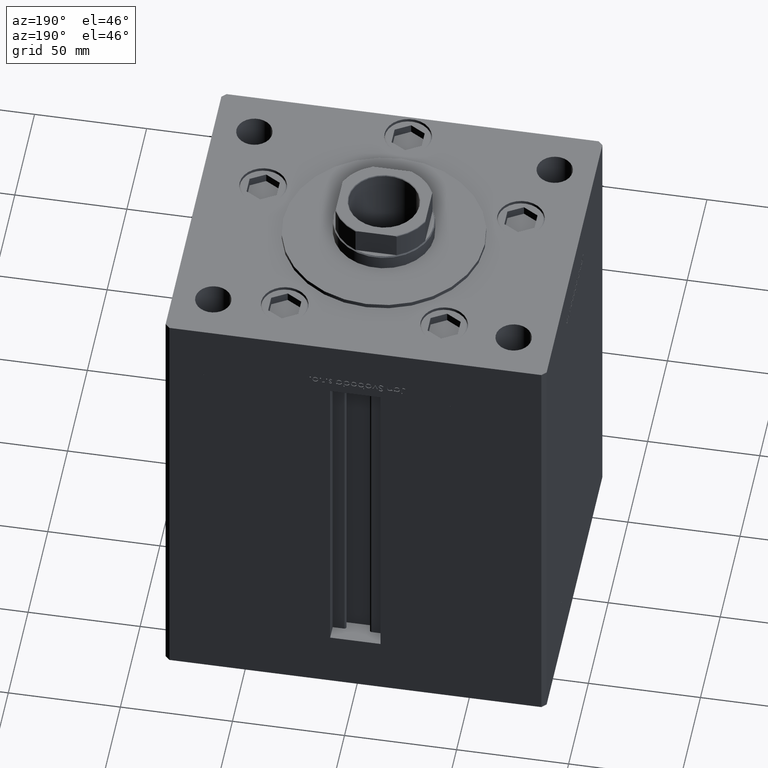
[diagram: clean part render]
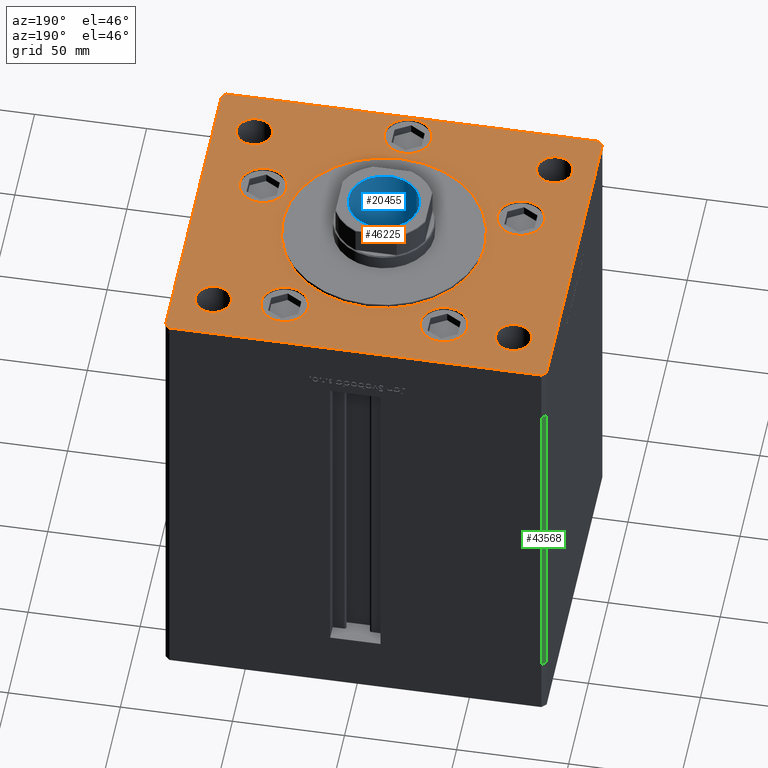
[diagram: same view with three faces highlighted in distinct colors, each labeled with its STEP entity id]
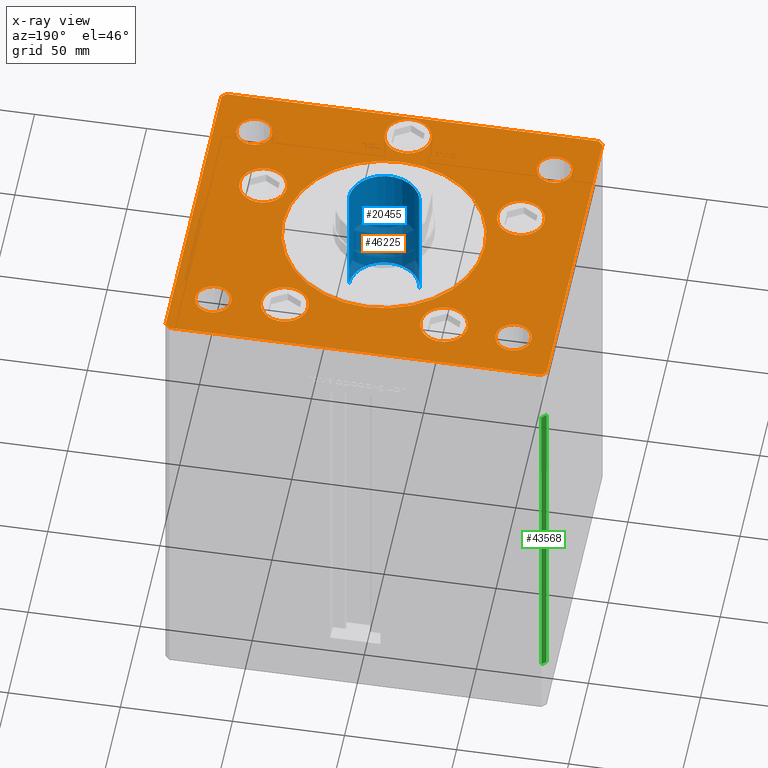
[diagram: x-ray of the same camera — body ghosted, the three highlighted faces saturated]
A machine part, auxiliary view with three faces highlighted in distinct colors.
The next image is the same camera in x-ray (body ghosted, the three faces saturated) — at least one of them is partly hidden behind the body in this view.
Their STEP definitions:

[orange] entity #46225 — the highlighted planar face has unit normal (0, 0, 1).
#43 = AXIS2_PLACEMENT_3D ( 'NONE', #26048, #34456, #42871 ) ;
#105 = DIRECTION ( 'NONE',  ( 0.000000000000000000, 0.000000000000000000, 1.000000000000000000 ) ) ;
#375 = DIRECTION ( 'NONE',  ( 1.000000000000000000, 0.000000000000000000, 0.000000000000000000 ) ) ;
#439 = EDGE_CURVE ( 'NONE', #29386, #24734, #47312, .T. ) ;
#594 = DIRECTION ( 'NONE',  ( 0.000000000000000000, 0.000000000000000000, 1.000000000000000000 ) ) ;
#682 = CIRCLE ( 'NONE', #36009, 8.000000000000007105 ) ;
#873 = LINE ( 'NONE', #40417, #955 ) ;
#877 = ORIENTED_EDGE ( 'NONE', *, *, #439, .T. ) ;
#955 = VECTOR ( 'NONE', #1401, 1000.000000000000000 ) ;
#1150 = CARTESIAN_POINT ( 'NONE',  ( -45.00000000000000711, -6.938893903907228378E-15, 0.000000000000000000 ) ) ;
#1401 = DIRECTION ( 'NONE',  ( 1.000000000000000000, 5.852079196066335998E-16, 0.000000000000000000 ) ) ;
#1518 = CIRCLE ( 'NONE', #4045, 10.50000000000000000 ) ;
#1680 = EDGE_CURVE ( 'NONE', #36586, #28237, #36664, .T. ) ;
#1709 = FACE_BOUND ( 'NONE', #37470, .T. ) ;
#1971 = FACE_BOUND ( 'NONE', #7152, .T. ) ;
#3124 = CARTESIAN_POINT ( 'NONE',  ( -75.00000000000000000, -52.00000000000000711, 0.000000000000000000 ) ) ;
#3299 = EDGE_CURVE ( 'NONE', #42583, #16744, #32587, .T. ) ;
#3316 = CARTESIAN_POINT ( 'NONE',  ( -82.99999999999998579, 72.49999999999998579, 0.000000000000000000 ) ) ;
#3624 = CARTESIAN_POINT ( 'NONE',  ( 67.00000000000000000, -52.00000000000000711, 0.000000000000000000 ) ) ;
#3657 = CARTESIAN_POINT ( 'NONE',  ( 35.56063263990113654, 49.56249999999997868, 0.000000000000000000 ) ) ;
#3679 = DIRECTION ( 'NONE',  ( 1.000000000000000000, 0.000000000000000000, 0.000000000000000000 ) ) ;
#3684 = DIRECTION ( 'NONE',  ( 0.000000000000000000, 0.000000000000000000, 1.000000000000000000 ) ) ;
#3885 = LINE ( 'NONE', #43920, #39482 ) ;
#3981 = LINE ( 'NONE', #36116, #22205 ) ;
#4045 = AXIS2_PLACEMENT_3D ( 'NONE', #33377, #48656, #37049 ) ;
#4093 = DIRECTION ( 'NONE',  ( 1.000000000000000000, 0.000000000000000000, 0.000000000000000000 ) ) ;
#4109 = CARTESIAN_POINT ( 'NONE',  ( -85.00000000000000000, -70.50000000000004263, 0.000000000000000000 ) ) ;
#4508 = CIRCLE ( 'NONE', #32270, 45.00000000000000711 ) ;
#4690 = CARTESIAN_POINT ( 'NONE',  ( 67.00000000000000000, -52.00000000000000711, 0.000000000000000000 ) ) ;
#4862 = CARTESIAN_POINT ( 'NONE',  ( 0.000000000000000000, -6.938893903907228378E-15, 0.000000000000000000 ) ) ;
#5087 = DIRECTION ( 'NONE',  ( 1.000000000000000000, 0.000000000000000000, 0.000000000000000000 ) ) ;
#5195 = AXIS2_PLACEMENT_3D ( 'NONE', #4690, #45247, #36575 ) ;
#5365 = DIRECTION ( 'NONE',  ( 0.000000000000000000, 0.000000000000000000, 1.000000000000000000 ) ) ;
#5677 = CARTESIAN_POINT ( 'NONE',  ( 25.06063263990113299, 49.56249999999997868, 0.000000000000000000 ) ) ;
#5746 = DIRECTION ( 'NONE',  ( 1.000000000000000000, 0.000000000000000000, 0.000000000000000000 ) ) ;
#5918 = FACE_BOUND ( 'NONE', #19017, .T. ) ;
#5941 = CIRCLE ( 'NONE', #35411, 8.000000000000000000 ) ;
#6249 = ORIENTED_EDGE ( 'NONE', *, *, #47534, .F. ) ;
#6260 = CARTESIAN_POINT ( 'NONE',  ( 35.56063263990113654, 49.56249999999997868, 0.000000000000000000 ) ) ;
#6313 = EDGE_CURVE ( 'NONE', #23902, #33551, #47519, .T. ) ;
#6338 = LINE ( 'NONE', #15555, #35627 ) ;
#6350 = VERTEX_POINT ( 'NONE', #45056 ) ;
#6600 = VERTEX_POINT ( 'NONE', #51098 ) ;
#6750 = CIRCLE ( 'NONE', #16840, 45.00000000000000711 ) ;
#6959 = CARTESIAN_POINT ( 'NONE',  ( -25.06063263990113299, 49.56249999999997868, 0.000000000000000000 ) ) ;
#7152 = EDGE_LOOP ( 'NONE', ( #44163, #42548 ) ) ;
#7230 = EDGE_LOOP ( 'NONE', ( #33865, #44922 ) ) ;
#7516 = EDGE_CURVE ( 'NONE', #6350, #8819, #31906, .T. ) ;
#7538 = CARTESIAN_POINT ( 'NONE',  ( -67.00000000000000000, 52.00000000000001421, 0.000000000000000000 ) ) ;
#7635 = EDGE_CURVE ( 'NONE', #52022, #15046, #43198, .T. ) ;
#7797 = DIRECTION ( 'NONE',  ( -0.7071067811865549002, -0.7071067811865401342, 0.000000000000000000 ) ) ;
#8238 = CARTESIAN_POINT ( 'NONE',  ( 85.00000000000001421, -70.49999999999994316, 0.000000000000000000 ) ) ;
#8531 = AXIS2_PLACEMENT_3D ( 'NONE', #26026, #34697, #49989 ) ;
#8558 = EDGE_CURVE ( 'NONE', #20353, #29386, #3885, .T. ) ;
#8819 = VERTEX_POINT ( 'NONE', #26762 ) ;
#8865 = DIRECTION ( 'NONE',  ( 1.000000000000000000, 0.000000000000000000, 0.000000000000000000 ) ) ;
#8965 = AXIS2_PLACEMENT_3D ( 'NONE', #10853, #23020, #51447 ) ;
#9134 = ORIENTED_EDGE ( 'NONE', *, *, #26668, .F. ) ;
#9336 = EDGE_CURVE ( 'NONE', #24734, #23902, #6338, .T. ) ;
#9423 = CARTESIAN_POINT ( 'NONE',  ( 75.00000000000001421, 52.00000000000000000, 0.000000000000000000 ) ) ;
#9523 = EDGE_CURVE ( 'NONE', #38104, #35550, #20173, .T. ) ;
#10075 = VERTEX_POINT ( 'NONE', #23750 ) ;
#10372 = FACE_BOUND ( 'NONE', #14573, .T. ) ;
#10438 = DIRECTION ( 'NONE',  ( 0.000000000000000000, 0.000000000000000000, 1.000000000000000000 ) ) ;
#10642 = ORIENTED_EDGE ( 'NONE', *, *, #22228, .T. ) ;
#10784 = VECTOR ( 'NONE', #44200, 1000.000000000000114 ) ;
#10853 = CARTESIAN_POINT ( 'NONE',  ( -67.00000000000000000, 52.00000000000001421, 0.000000000000000000 ) ) ;
#11206 = AXIS2_PLACEMENT_3D ( 'NONE', #3657, #19745, #35804 ) ;
#11522 = EDGE_CURVE ( 'NONE', #19153, #28377, #6750, .T. ) ;
#11761 = DIRECTION ( 'NONE',  ( -1.000000000000000000, 0.000000000000000000, 0.000000000000000000 ) ) ;
#11800 = AXIS2_PLACEMENT_3D ( 'NONE', #36845, #45265, #5746 ) ;
#11867 = VERTEX_POINT ( 'NONE', #44079 ) ;
#11890 = AXIS2_PLACEMENT_3D ( 'NONE', #29354, #37498, #5087 ) ;
#12025 = DIRECTION ( 'NONE',  ( -1.000000000000000000, -2.508033941171286997E-16, 0.000000000000000000 ) ) ;
#12085 = CIRCLE ( 'NONE', #12912, 10.50000000000000178 ) ;
#12381 = DIRECTION ( 'NONE',  ( -0.7071067811865500152, 0.7071067811865451302, 0.000000000000000000 ) ) ;
#12912 = AXIS2_PLACEMENT_3D ( 'NONE', #44594, #594, #44344 ) ;
#12975 = ORIENTED_EDGE ( 'NONE', *, *, #48389, .F. ) ;
#13110 = VECTOR ( 'NONE', #7797, 1000.000000000000000 ) ;
#13942 = AXIS2_PLACEMENT_3D ( 'NONE', #50845, #31097, #3679 ) ;
#14329 = PLANE ( 'NONE',  #19505 ) ;
#14573 = EDGE_LOOP ( 'NONE', ( #44334, #6249 ) ) ;
#14734 = VERTEX_POINT ( 'NONE', #52150 ) ;
#15046 = VERTEX_POINT ( 'NONE', #17278 ) ;
#15181 = DIRECTION ( 'NONE',  ( -0.000000000000000000, -0.000000000000000000, -1.000000000000000000 ) ) ;
#15450 = CARTESIAN_POINT ( 'NONE',  ( 75.00000000000001421, -52.00000000000000711, 0.000000000000000000 ) ) ;
#15555 = CARTESIAN_POINT ( 'NONE',  ( -85.00000000000000000, 70.50000000000000000, 0.000000000000000000 ) ) ;
#15741 = DIRECTION ( 'NONE',  ( -0.000000000000000000, -0.000000000000000000, -1.000000000000000000 ) ) ;
#15800 = CARTESIAN_POINT ( 'NONE',  ( 57.51135153650587029, -20.33333333333332504, 0.000000000000000000 ) ) ;
#15840 = ORIENTED_EDGE ( 'NONE', *, *, #16064, .T. ) ;
#16024 = ORIENTED_EDGE ( 'NONE', *, *, #11522, .F. ) ;
#16033 = EDGE_CURVE ( 'NONE', #47504, #6600, #16947, .T. ) ;
#16039 = CIRCLE ( 'NONE', #43, 10.50000000000000000 ) ;
#16064 = EDGE_CURVE ( 'NONE', #33551, #49577, #873, .T. ) ;
#16073 = CARTESIAN_POINT ( 'NONE',  ( -10.50000000000000000, -61.00000000000000000, 0.000000000000000000 ) ) ;
#16183 = DIRECTION ( 'NONE',  ( 1.000000000000000000, 0.000000000000000000, 0.000000000000000000 ) ) ;
#16400 = CARTESIAN_POINT ( 'NONE',  ( 83.00000000000001421, 72.50000000000002842, 0.000000000000000000 ) ) ;
#16744 = VERTEX_POINT ( 'NONE', #40814 ) ;
#16840 = AXIS2_PLACEMENT_3D ( 'NONE', #4862, #20961, #4093 ) ;
#16947 = CIRCLE ( 'NONE', #11890, 8.000000000000007105 ) ;
#16991 = AXIS2_PLACEMENT_3D ( 'NONE', #29362, #5365, #375 ) ;
#17028 = EDGE_CURVE ( 'NONE', #8819, #6350, #50637, .T. ) ;
#17063 = ORIENTED_EDGE ( 'NONE', *, *, #39808, .F. ) ;
#17278 = CARTESIAN_POINT ( 'NONE',  ( 85.00000000000001421, 70.50000000000002842, 0.000000000000000000 ) ) ;
#17537 = FACE_BOUND ( 'NONE', #51192, .T. ) ;
#17913 = ORIENTED_EDGE ( 'NONE', *, *, #40605, .T. ) ;
#18224 = CIRCLE ( 'NONE', #45100, 10.50000000000000178 ) ;
#18532 = CARTESIAN_POINT ( 'NONE',  ( 46.06063263990113654, 49.56249999999997868, 0.000000000000000000 ) ) ;
#18555 = FACE_BOUND ( 'NONE', #19554, .T. ) ;
#18602 = ORIENTED_EDGE ( 'NONE', *, *, #45866, .T. ) ;
#18665 = CIRCLE ( 'NONE', #8531, 8.000000000000000000 ) ;
#18857 = CARTESIAN_POINT ( 'NONE',  ( 83.00000000000001421, -72.49999999999994316, 0.000000000000000000 ) ) ;
#19017 = EDGE_LOOP ( 'NONE', ( #17063, #12975 ) ) ;
#19153 = VERTEX_POINT ( 'NONE', #49164 ) ;
#19505 = AXIS2_PLACEMENT_3D ( 'NONE', #42007, #42784, #22023 ) ;
#19554 = EDGE_LOOP ( 'NONE', ( #27709, #40587 ) ) ;
#19745 = DIRECTION ( 'NONE',  ( 0.000000000000000000, 0.000000000000000000, 1.000000000000000000 ) ) ;
#20173 = CIRCLE ( 'NONE', #28594, 10.50000000000000178 ) ;
#20242 = LINE ( 'NONE', #39728, #10784 ) ;
#20301 = EDGE_LOOP ( 'NONE', ( #37465, #16024 ) ) ;
#20338 = EDGE_CURVE ( 'NONE', #28377, #19153, #4508, .T. ) ;
#20353 = VERTEX_POINT ( 'NONE', #16400 ) ;
#20961 = DIRECTION ( 'NONE',  ( 0.000000000000000000, 0.000000000000000000, 1.000000000000000000 ) ) ;
#21084 = AXIS2_PLACEMENT_3D ( 'NONE', #15800, #3684, #35044 ) ;
#21771 = CARTESIAN_POINT ( 'NONE',  ( -85.00000000000000000, 70.50000000000000000, 0.000000000000000000 ) ) ;
#22023 = DIRECTION ( 'NONE',  ( 1.000000000000000000, 0.000000000000000000, 0.000000000000000000 ) ) ;
#22205 = VECTOR ( 'NONE', #12381, 1000.000000000000114 ) ;
#22228 = EDGE_CURVE ( 'NONE', #15046, #20353, #3981, .T. ) ;
#22284 = FACE_BOUND ( 'NONE', #38946, .T. ) ;
#22466 = EDGE_LOOP ( 'NONE', ( #42151, #9134 ) ) ;
#22880 = EDGE_CURVE ( 'NONE', #28237, #36586, #12085, .T. ) ;
#23020 = DIRECTION ( 'NONE',  ( -0.000000000000000000, -0.000000000000000000, -1.000000000000000000 ) ) ;
#23659 = AXIS2_PLACEMENT_3D ( 'NONE', #37231, #105, #16183 ) ;
#23688 = CARTESIAN_POINT ( 'NONE',  ( -82.99999999999998579, 72.49999999999998579, 0.000000000000000000 ) ) ;
#23750 = CARTESIAN_POINT ( 'NONE',  ( -68.01135153650587029, -20.33333333333332504, 0.000000000000000000 ) ) ;
#23902 = VERTEX_POINT ( 'NONE', #4109 ) ;
#24608 = VERTEX_POINT ( 'NONE', #15450 ) ;
#24734 = VERTEX_POINT ( 'NONE', #21771 ) ;
#25808 = CARTESIAN_POINT ( 'NONE',  ( -46.06063263990113654, 49.56249999999997868, 0.000000000000000000 ) ) ;
#25969 = FACE_BOUND ( 'NONE', #7230, .T. ) ;
#26026 = CARTESIAN_POINT ( 'NONE',  ( -67.00000000000000000, -52.00000000000000711, 0.000000000000000000 ) ) ;
#26048 = CARTESIAN_POINT ( 'NONE',  ( 0.000000000000000000, -61.00000000000000000, 0.000000000000000000 ) ) ;
#26122 = CIRCLE ( 'NONE', #30450, 7.999999999999992895 ) ;
#26479 = FACE_BOUND ( 'NONE', #22466, .T. ) ;
#26668 = EDGE_CURVE ( 'NONE', #35550, #38104, #36461, .T. ) ;
#26762 = CARTESIAN_POINT ( 'NONE',  ( 68.01135153650587029, -20.33333333333332504, 0.000000000000000000 ) ) ;
#27024 = VECTOR ( 'NONE', #44548, 1000.000000000000114 ) ;
#27694 = VECTOR ( 'NONE', #51112, 1000.000000000000000 ) ;
#27709 = ORIENTED_EDGE ( 'NONE', *, *, #46067, .T. ) ;
#27800 = CARTESIAN_POINT ( 'NONE',  ( -83.00000000000001421, -72.50000000000004263, 0.000000000000000000 ) ) ;
#28237 = VERTEX_POINT ( 'NONE', #6959 ) ;
#28377 = VERTEX_POINT ( 'NONE', #1150 ) ;
#28594 = AXIS2_PLACEMENT_3D ( 'NONE', #6260, #33697, #49751 ) ;
#29010 = CARTESIAN_POINT ( 'NONE',  ( -47.01135153650587029, -20.33333333333332504, 0.000000000000000000 ) ) ;
#29025 = CARTESIAN_POINT ( 'NONE',  ( -85.00000000000000000, -70.50000000000004263, 0.000000000000000000 ) ) ;
#29354 = CARTESIAN_POINT ( 'NONE',  ( 67.00000000000000000, 52.00000000000000000, 0.000000000000000000 ) ) ;
#29362 = CARTESIAN_POINT ( 'NONE',  ( 57.51135153650587029, -20.33333333333332504, 0.000000000000000000 ) ) ;
#29386 = VERTEX_POINT ( 'NONE', #23688 ) ;
#29641 = ORIENTED_EDGE ( 'NONE', *, *, #8558, .T. ) ;
#30391 = CARTESIAN_POINT ( 'NONE',  ( 0.000000000000000000, -6.938893903907228378E-15, 0.000000000000000000 ) ) ;
#30450 = AXIS2_PLACEMENT_3D ( 'NONE', #7538, #15181, #35483 ) ;
#31021 = ORIENTED_EDGE ( 'NONE', *, *, #6313, .T. ) ;
#31097 = DIRECTION ( 'NONE',  ( 0.000000000000000000, 0.000000000000000000, 1.000000000000000000 ) ) ;
#31906 = CIRCLE ( 'NONE', #21084, 10.49999999999999467 ) ;
#32270 = AXIS2_PLACEMENT_3D ( 'NONE', #30391, #46432, #51182 ) ;
#32587 = CIRCLE ( 'NONE', #8965, 7.999999999999992895 ) ;
#33377 = CARTESIAN_POINT ( 'NONE',  ( 0.000000000000000000, -61.00000000000000000, 0.000000000000000000 ) ) ;
#33551 = VERTEX_POINT ( 'NONE', #27800 ) ;
#33697 = DIRECTION ( 'NONE',  ( 0.000000000000000000, 0.000000000000000000, 1.000000000000000000 ) ) ;
#33802 = CIRCLE ( 'NONE', #5195, 8.000000000000007105 ) ;
#33865 = ORIENTED_EDGE ( 'NONE', *, *, #22880, .F. ) ;
#34456 = DIRECTION ( 'NONE',  ( 0.000000000000000000, 0.000000000000000000, 1.000000000000000000 ) ) ;
#34472 = EDGE_CURVE ( 'NONE', #43882, #10075, #18224, .T. ) ;
#34539 = DIRECTION ( 'NONE',  ( 0.000000000000000000, -1.000000000000000000, 0.000000000000000000 ) ) ;
#34567 = ORIENTED_EDGE ( 'NONE', *, *, #9336, .T. ) ;
#34697 = DIRECTION ( 'NONE',  ( 0.000000000000000000, 0.000000000000000000, 1.000000000000000000 ) ) ;
#34896 = VERTEX_POINT ( 'NONE', #37162 ) ;
#35044 = DIRECTION ( 'NONE',  ( 1.000000000000000000, 0.000000000000000000, 0.000000000000000000 ) ) ;
#35411 = AXIS2_PLACEMENT_3D ( 'NONE', #37331, #48668, #8865 ) ;
#35483 = DIRECTION ( 'NONE',  ( -1.000000000000000000, 0.000000000000000000, 0.000000000000000000 ) ) ;
#35550 = VERTEX_POINT ( 'NONE', #5677 ) ;
#35569 = CARTESIAN_POINT ( 'NONE',  ( 85.00000000000001421, -70.49999999999994316, 0.000000000000000000 ) ) ;
#35627 = VECTOR ( 'NONE', #34539, 1000.000000000000000 ) ;
#35643 = CARTESIAN_POINT ( 'NONE',  ( -75.00000000000000000, 52.00000000000001421, 0.000000000000000000 ) ) ;
#35804 = DIRECTION ( 'NONE',  ( 1.000000000000000000, 0.000000000000000000, 0.000000000000000000 ) ) ;
#36009 = AXIS2_PLACEMENT_3D ( 'NONE', #3624, #15741, #11761 ) ;
#36116 = CARTESIAN_POINT ( 'NONE',  ( 85.00000000000001421, 70.50000000000002842, 0.000000000000000000 ) ) ;
#36259 = DIRECTION ( 'NONE',  ( 1.000000000000000000, 0.000000000000000000, 0.000000000000000000 ) ) ;
#36461 = CIRCLE ( 'NONE', #11206, 10.50000000000000178 ) ;
#36575 = DIRECTION ( 'NONE',  ( -1.000000000000000000, 0.000000000000000000, 0.000000000000000000 ) ) ;
#36586 = VERTEX_POINT ( 'NONE', #25808 ) ;
#36664 = CIRCLE ( 'NONE', #13942, 10.50000000000000178 ) ;
#36845 = CARTESIAN_POINT ( 'NONE',  ( 67.00000000000000000, 52.00000000000000000, 0.000000000000000000 ) ) ;
#37049 = DIRECTION ( 'NONE',  ( 1.000000000000000000, 0.000000000000000000, 0.000000000000000000 ) ) ;
#37162 = CARTESIAN_POINT ( 'NONE',  ( -59.00000000000000711, -52.00000000000000711, 0.000000000000000000 ) ) ;
#37231 = CARTESIAN_POINT ( 'NONE',  ( -57.51135153650587029, -20.33333333333332504, 0.000000000000000000 ) ) ;
#37331 = CARTESIAN_POINT ( 'NONE',  ( -67.00000000000000000, -52.00000000000000711, 0.000000000000000000 ) ) ;
#37465 = ORIENTED_EDGE ( 'NONE', *, *, #20338, .F. ) ;
#37470 = EDGE_LOOP ( 'NONE', ( #41668, #18602 ) ) ;
#37498 = DIRECTION ( 'NONE',  ( 0.000000000000000000, 0.000000000000000000, 1.000000000000000000 ) ) ;
#37916 = CIRCLE ( 'NONE', #11800, 8.000000000000007105 ) ;
#38104 = VERTEX_POINT ( 'NONE', #18532 ) ;
#38946 = EDGE_LOOP ( 'NONE', ( #47044, #46422 ) ) ;
#39482 = VECTOR ( 'NONE', #12025, 1000.000000000000000 ) ;
#39700 = EDGE_CURVE ( 'NONE', #24608, #11867, #682, .T. ) ;
#39728 = CARTESIAN_POINT ( 'NONE',  ( 83.00000000000001421, -72.49999999999994316, 0.000000000000000000 ) ) ;
#39808 = EDGE_CURVE ( 'NONE', #14734, #49207, #1518, .T. ) ;
#40417 = CARTESIAN_POINT ( 'NONE',  ( -83.00000000000001421, -72.50000000000004263, 0.000000000000000000 ) ) ;
#40587 = ORIENTED_EDGE ( 'NONE', *, *, #3299, .T. ) ;
#40605 = EDGE_CURVE ( 'NONE', #49577, #52022, #20242, .T. ) ;
#40814 = CARTESIAN_POINT ( 'NONE',  ( -59.00000000000000711, 52.00000000000001421, 0.000000000000000000 ) ) ;
#41156 = EDGE_LOOP ( 'NONE', ( #31021, #15840, #17913, #41364, #10642, #29641, #877, #34567 ) ) ;
#41364 = ORIENTED_EDGE ( 'NONE', *, *, #7635, .T. ) ;
#41668 = ORIENTED_EDGE ( 'NONE', *, *, #39700, .T. ) ;
#42007 = CARTESIAN_POINT ( 'NONE',  ( 0.000000000000000000, 0.000000000000000000, 0.000000000000000000 ) ) ;
#42151 = ORIENTED_EDGE ( 'NONE', *, *, #9523, .F. ) ;
#42548 = ORIENTED_EDGE ( 'NONE', *, *, #45976, .F. ) ;
#42583 = VERTEX_POINT ( 'NONE', #35643 ) ;
#42784 = DIRECTION ( 'NONE',  ( -0.000000000000000000, 0.000000000000000000, 1.000000000000000000 ) ) ;
#42871 = DIRECTION ( 'NONE',  ( 1.000000000000000000, 0.000000000000000000, 0.000000000000000000 ) ) ;
#42947 = CIRCLE ( 'NONE', #23659, 10.50000000000000178 ) ;
#43197 = EDGE_CURVE ( 'NONE', #34896, #43924, #5941, .T. ) ;
#43198 = LINE ( 'NONE', #35569, #27694 ) ;
#43882 = VERTEX_POINT ( 'NONE', #29010 ) ;
#43920 = CARTESIAN_POINT ( 'NONE',  ( 83.00000000000001421, 72.50000000000002842, 0.000000000000000000 ) ) ;
#43924 = VERTEX_POINT ( 'NONE', #3124 ) ;
#44069 = ORIENTED_EDGE ( 'NONE', *, *, #47724, .F. ) ;
#44079 = CARTESIAN_POINT ( 'NONE',  ( 59.00000000000000000, -52.00000000000000711, 0.000000000000000000 ) ) ;
#44163 = ORIENTED_EDGE ( 'NONE', *, *, #43197, .F. ) ;
#44200 = DIRECTION ( 'NONE',  ( 0.7071067811865474617, 0.7071067811865474617, 0.000000000000000000 ) ) ;
#44334 = ORIENTED_EDGE ( 'NONE', *, *, #16033, .F. ) ;
#44344 = DIRECTION ( 'NONE',  ( 1.000000000000000000, 0.000000000000000000, 0.000000000000000000 ) ) ;
#44548 = DIRECTION ( 'NONE',  ( 0.7071067811865474617, -0.7071067811865474617, 0.000000000000000000 ) ) ;
#44594 = CARTESIAN_POINT ( 'NONE',  ( -35.56063263990113654, 49.56249999999997868, 0.000000000000000000 ) ) ;
#44922 = ORIENTED_EDGE ( 'NONE', *, *, #1680, .F. ) ;
#45056 = CARTESIAN_POINT ( 'NONE',  ( 47.01135153650587739, -20.33333333333332504, 0.000000000000000000 ) ) ;
#45100 = AXIS2_PLACEMENT_3D ( 'NONE', #46544, #10438, #36259 ) ;
#45247 = DIRECTION ( 'NONE',  ( -0.000000000000000000, -0.000000000000000000, -1.000000000000000000 ) ) ;
#45265 = DIRECTION ( 'NONE',  ( 0.000000000000000000, 0.000000000000000000, 1.000000000000000000 ) ) ;
#45313 = ORIENTED_EDGE ( 'NONE', *, *, #34472, .F. ) ;
#45866 = EDGE_CURVE ( 'NONE', #11867, #24608, #33802, .T. ) ;
#45961 = FACE_BOUND ( 'NONE', #20301, .T. ) ;
#45976 = EDGE_CURVE ( 'NONE', #43924, #34896, #18665, .T. ) ;
#46067 = EDGE_CURVE ( 'NONE', #16744, #42583, #26122, .T. ) ;
#46225 = ADVANCED_FACE ( 'NONE', ( #45961, #17537, #5918, #22284, #26479, #25969, #18555, #10372, #1971, #50696, #1709 ), #14329, .T. ) ;
#46422 = ORIENTED_EDGE ( 'NONE', *, *, #7516, .F. ) ;
#46432 = DIRECTION ( 'NONE',  ( 0.000000000000000000, 0.000000000000000000, 1.000000000000000000 ) ) ;
#46544 = CARTESIAN_POINT ( 'NONE',  ( -57.51135153650587029, -20.33333333333332504, 0.000000000000000000 ) ) ;
#47044 = ORIENTED_EDGE ( 'NONE', *, *, #17028, .F. ) ;
#47312 = LINE ( 'NONE', #3316, #13110 ) ;
#47504 = VERTEX_POINT ( 'NONE', #9423 ) ;
#47519 = LINE ( 'NONE', #29025, #27024 ) ;
#47534 = EDGE_CURVE ( 'NONE', #6600, #47504, #37916, .T. ) ;
#47724 = EDGE_CURVE ( 'NONE', #10075, #43882, #42947, .T. ) ;
#48389 = EDGE_CURVE ( 'NONE', #49207, #14734, #16039, .T. ) ;
#48656 = DIRECTION ( 'NONE',  ( 0.000000000000000000, 0.000000000000000000, 1.000000000000000000 ) ) ;
#48668 = DIRECTION ( 'NONE',  ( 0.000000000000000000, 0.000000000000000000, 1.000000000000000000 ) ) ;
#49164 = CARTESIAN_POINT ( 'NONE',  ( 45.00000000000000711, -1.427983307744138033E-15, 0.000000000000000000 ) ) ;
#49207 = VERTEX_POINT ( 'NONE', #16073 ) ;
#49577 = VERTEX_POINT ( 'NONE', #18857 ) ;
#49751 = DIRECTION ( 'NONE',  ( 1.000000000000000000, 0.000000000000000000, 0.000000000000000000 ) ) ;
#49989 = DIRECTION ( 'NONE',  ( 1.000000000000000000, 0.000000000000000000, 0.000000000000000000 ) ) ;
#50637 = CIRCLE ( 'NONE', #16991, 10.49999999999999467 ) ;
#50696 = FACE_OUTER_BOUND ( 'NONE', #41156, .T. ) ;
#50845 = CARTESIAN_POINT ( 'NONE',  ( -35.56063263990113654, 49.56249999999997868, 0.000000000000000000 ) ) ;
#51098 = CARTESIAN_POINT ( 'NONE',  ( 59.00000000000000000, 52.00000000000000000, 0.000000000000000000 ) ) ;
#51112 = DIRECTION ( 'NONE',  ( 0.000000000000000000, 1.000000000000000000, 0.000000000000000000 ) ) ;
#51182 = DIRECTION ( 'NONE',  ( 1.000000000000000000, 0.000000000000000000, 0.000000000000000000 ) ) ;
#51192 = EDGE_LOOP ( 'NONE', ( #45313, #44069 ) ) ;
#51447 = DIRECTION ( 'NONE',  ( -1.000000000000000000, 0.000000000000000000, 0.000000000000000000 ) ) ;
#52022 = VERTEX_POINT ( 'NONE', #8238 ) ;
#52150 = CARTESIAN_POINT ( 'NONE',  ( 10.50000000000000000, -61.00000000000000000, 0.000000000000000000 ) ) ;

[blue] entity #20455 — the highlighted cylindrical surface (edge-blend (fillet) strip) has radius 15.75 mm, axis along (0, 0, 1).
#203 = EDGE_CURVE ( 'NONE', #50781, #47587, #14770, .T. ) ;
#322 = CARTESIAN_POINT ( 'NONE',  ( 0.000000000000000000, 0.000000000000000000, 138.0000000000000000 ) ) ;
#720 = CARTESIAN_POINT ( 'NONE',  ( 0.000000000000000000, 0.000000000000000000, 192.6999999999999602 ) ) ;
#4893 = LINE ( 'NONE', #48889, #37582 ) ;
#5564 = CYLINDRICAL_SURFACE ( 'NONE', #41509, 15.74999999999999289 ) ;
#5805 = VERTEX_POINT ( 'NONE', #14922 ) ;
#6080 = DIRECTION ( 'NONE',  ( -0.000000000000000000, -0.000000000000000000, 1.000000000000000000 ) ) ;
#10015 = CARTESIAN_POINT ( 'NONE',  ( 0.000000000000000000, 0.000000000000000000, 193.0000000000000000 ) ) ;
#10592 = VECTOR ( 'NONE', #14401, 1000.000000000000000 ) ;
#11156 = ORIENTED_EDGE ( 'NONE', *, *, #34458, .F. ) ;
#12675 = DIRECTION ( 'NONE',  ( -0.000000000000000000, -0.000000000000000000, 1.000000000000000000 ) ) ;
#14401 = DIRECTION ( 'NONE',  ( -0.000000000000000000, -0.000000000000000000, 1.000000000000000000 ) ) ;
#14770 = CIRCLE ( 'NONE', #49265, 15.74999999999999289 ) ;
#14922 = CARTESIAN_POINT ( 'NONE',  ( -15.74999999999998934, 1.928818708657080161E-15, 138.0000000000000000 ) ) ;
#19528 = ORIENTED_EDGE ( 'NONE', *, *, #40016, .F. ) ;
#20455 = ADVANCED_FACE ( 'NONE', ( #30082 ), #5564, .F. ) ;
#21667 = DIRECTION ( 'NONE',  ( 1.000000000000000000, 0.000000000000000000, 0.000000000000000000 ) ) ;
#26791 = EDGE_LOOP ( 'NONE', ( #19528, #43564, #41627, #11156 ) ) ;
#28478 = AXIS2_PLACEMENT_3D ( 'NONE', #322, #12675, #36154 ) ;
#29112 = CARTESIAN_POINT ( 'NONE',  ( -15.74999999999999289, 1.928818708657080556E-15, 192.6999999999999602 ) ) ;
#29935 = DIRECTION ( 'NONE',  ( -0.000000000000000000, -0.000000000000000000, 1.000000000000000000 ) ) ;
#30082 = FACE_OUTER_BOUND ( 'NONE', #26791, .T. ) ;
#33147 = DIRECTION ( 'NONE',  ( 1.000000000000000000, 0.000000000000000000, 0.000000000000000000 ) ) ;
#34458 = EDGE_CURVE ( 'NONE', #50439, #47587, #50249, .T. ) ;
#35485 = EDGE_CURVE ( 'NONE', #5805, #50781, #4893, .T. ) ;
#36154 = DIRECTION ( 'NONE',  ( 1.000000000000000000, 0.000000000000000000, 0.000000000000000000 ) ) ;
#37077 = DIRECTION ( 'NONE',  ( 0.000000000000000000, 0.000000000000000000, 1.000000000000000000 ) ) ;
#37582 = VECTOR ( 'NONE', #29935, 1000.000000000000000 ) ;
#40016 = EDGE_CURVE ( 'NONE', #5805, #50439, #51162, .T. ) ;
#41509 = AXIS2_PLACEMENT_3D ( 'NONE', #10015, #6080, #21667 ) ;
#41627 = ORIENTED_EDGE ( 'NONE', *, *, #203, .T. ) ;
#43564 = ORIENTED_EDGE ( 'NONE', *, *, #35485, .T. ) ;
#44189 = CARTESIAN_POINT ( 'NONE',  ( 15.74999999999998934, 0.000000000000000000, 138.0000000000000000 ) ) ;
#47587 = VERTEX_POINT ( 'NONE', #49484 ) ;
#48889 = CARTESIAN_POINT ( 'NONE',  ( -15.74999999999999289, 1.928818708657080556E-15, 193.0000000000000000 ) ) ;
#49265 = AXIS2_PLACEMENT_3D ( 'NONE', #720, #37077, #33147 ) ;
#49484 = CARTESIAN_POINT ( 'NONE',  ( 15.74999999999999289, 0.000000000000000000, 192.6999999999999602 ) ) ;
#50249 = LINE ( 'NONE', #50495, #10592 ) ;
#50439 = VERTEX_POINT ( 'NONE', #44189 ) ;
#50495 = CARTESIAN_POINT ( 'NONE',  ( 15.74999999999999289, 0.000000000000000000, 193.0000000000000000 ) ) ;
#50781 = VERTEX_POINT ( 'NONE', #29112 ) ;
#51162 = CIRCLE ( 'NONE', #28478, 15.74999999999998934 ) ;

[green] entity #43568 — the highlighted planar face has unit normal (0.7071, -0.7071, 0).
#253 = VECTOR ( 'NONE', #49885, 1000.000000000000114 ) ;
#290 = DIRECTION ( 'NONE',  ( -0.7071067811865474617, -0.7071067811865474617, 0.000000000000000000 ) ) ;
#300 = EDGE_CURVE ( 'NONE', #18239, #28550, #42579, .T. ) ;
#650 = DIRECTION ( 'NONE',  ( 0.7071067811865475727, -0.7071067811865475727, 0.000000000000000000 ) ) ;
#2884 = VECTOR ( 'NONE', #290, 1000.000000000000114 ) ;
#3393 = VECTOR ( 'NONE', #29249, 1000.000000000000000 ) ;
#4495 = EDGE_LOOP ( 'NONE', ( #30312, #29204, #50100, #37118 ) ) ;
#11482 = VERTEX_POINT ( 'NONE', #43348 ) ;
#13018 = CARTESIAN_POINT ( 'NONE',  ( -83.00000000000001421, 72.49999999999998579, 156.0000000000000000 ) ) ;
#13869 = CARTESIAN_POINT ( 'NONE',  ( -83.00000000000001421, 72.49999999999998579, 156.0000000000000000 ) ) ;
#15337 = CARTESIAN_POINT ( 'NONE',  ( -83.00000000000001421, 72.49999999999998579, 0.000000000000000000 ) ) ;
#17513 = FACE_OUTER_BOUND ( 'NONE', #4495, .T. ) ;
#18239 = VERTEX_POINT ( 'NONE', #33039 ) ;
#18354 = DIRECTION ( 'NONE',  ( -0.000000000000000000, -0.000000000000000000, -1.000000000000000000 ) ) ;
#19612 = EDGE_CURVE ( 'NONE', #28550, #11482, #38274, .T. ) ;
#21134 = AXIS2_PLACEMENT_3D ( 'NONE', #13018, #650, #44654 ) ;
#24286 = EDGE_CURVE ( 'NONE', #18239, #43047, #45055, .T. ) ;
#28550 = VERTEX_POINT ( 'NONE', #15337 ) ;
#28759 = CARTESIAN_POINT ( 'NONE',  ( -83.00000000000001421, 72.49999999999998579, 156.0000000000000000 ) ) ;
#29204 = ORIENTED_EDGE ( 'NONE', *, *, #42160, .F. ) ;
#29249 = DIRECTION ( 'NONE',  ( -0.000000000000000000, -0.000000000000000000, -1.000000000000000000 ) ) ;
#30312 = ORIENTED_EDGE ( 'NONE', *, *, #19612, .T. ) ;
#31375 = CARTESIAN_POINT ( 'NONE',  ( -83.00000000000001421, 72.49999999999998579, 0.000000000000000000 ) ) ;
#31584 = CARTESIAN_POINT ( 'NONE',  ( -85.00000000000001421, 70.49999999999998579, 156.0000000000000000 ) ) ;
#32680 = LINE ( 'NONE', #41078, #3393 ) ;
#33039 = CARTESIAN_POINT ( 'NONE',  ( -83.00000000000001421, 72.49999999999998579, 156.0000000000000000 ) ) ;
#37118 = ORIENTED_EDGE ( 'NONE', *, *, #300, .T. ) ;
#38274 = LINE ( 'NONE', #31375, #253 ) ;
#41078 = CARTESIAN_POINT ( 'NONE',  ( -85.00000000000001421, 70.49999999999998579, 156.0000000000000000 ) ) ;
#42160 = EDGE_CURVE ( 'NONE', #43047, #11482, #32680, .T. ) ;
#42579 = LINE ( 'NONE', #13869, #50959 ) ;
#43047 = VERTEX_POINT ( 'NONE', #31584 ) ;
#43348 = CARTESIAN_POINT ( 'NONE',  ( -85.00000000000001421, 70.49999999999998579, 0.000000000000000000 ) ) ;
#43568 = ADVANCED_FACE ( 'NONE', ( #17513 ), #49119, .F. ) ;
#44654 = DIRECTION ( 'NONE',  ( 0.7071067811865474617, 0.7071067811865474617, 0.000000000000000000 ) ) ;
#45055 = LINE ( 'NONE', #28759, #2884 ) ;
#49119 = PLANE ( 'NONE',  #21134 ) ;
#49885 = DIRECTION ( 'NONE',  ( -0.7071067811865474617, -0.7071067811865474617, 0.000000000000000000 ) ) ;
#50100 = ORIENTED_EDGE ( 'NONE', *, *, #24286, .F. ) ;
#50959 = VECTOR ( 'NONE', #18354, 1000.000000000000000 ) ;